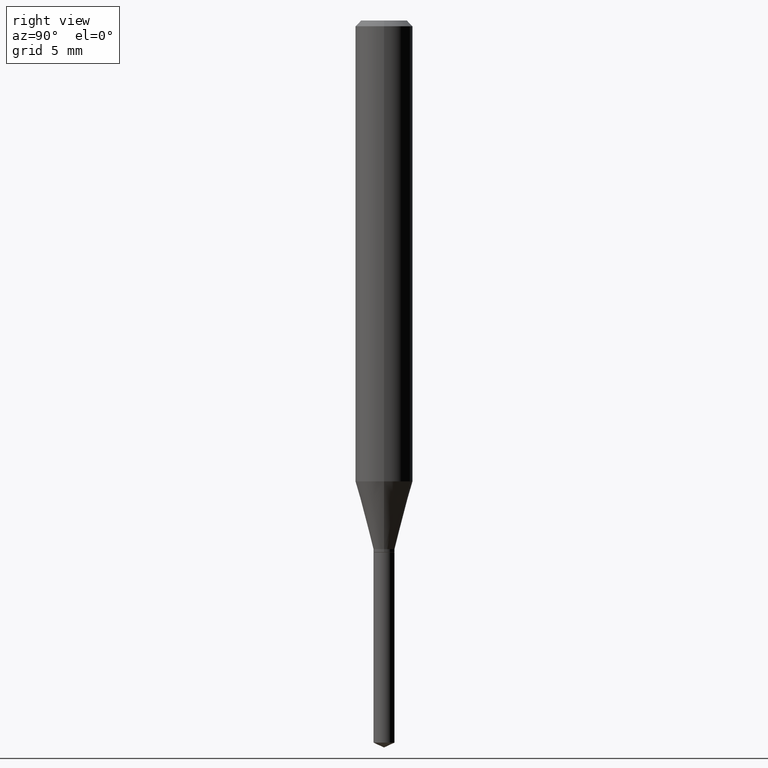
[diagram: clean part render]
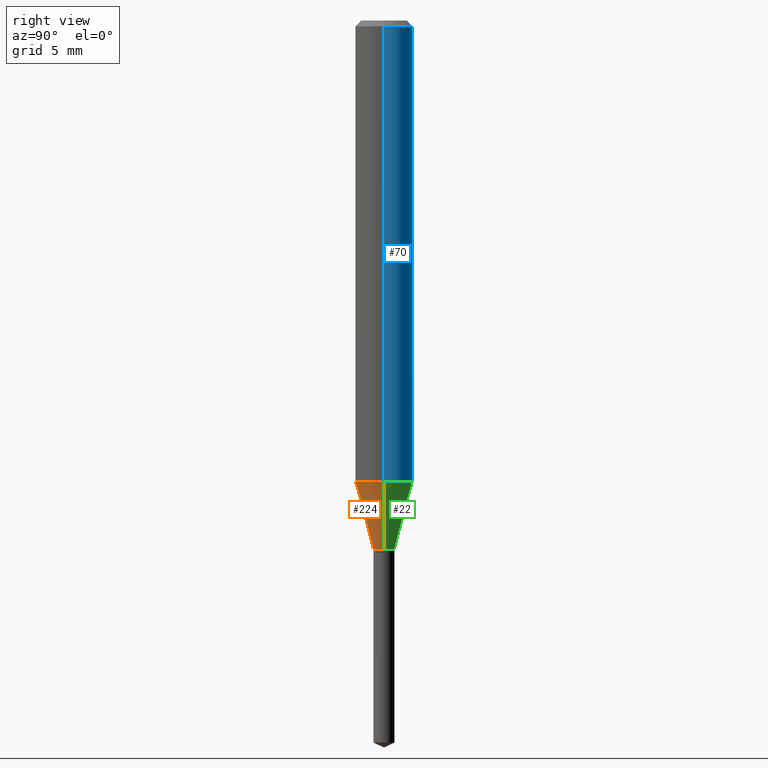
[diagram: same view with three faces highlighted in distinct colors, each labeled with its STEP entity id]
A machine part, right view with three faces highlighted in distinct colors.
Their STEP definitions:

[orange] entity #224 — the highlighted conical surface has half-angle 15 deg.
#25 = CARTESIAN_POINT ( 'NONE',  ( 2.660670061129428738E-29, -3.798731696661342438E-15, -1.088000000000000078 ) ) ;
#42 = DIRECTION ( 'NONE',  ( 1.000000000000000000, -6.982962677686277755E-15, 0.000000000000000000 ) ) ;
#58 = CARTESIAN_POINT ( 'NONE',  ( -0.02164999999999997135, -3.655373638385810145E-15, -1.088000000000000078 ) ) ;
#62 = CARTESIAN_POINT ( 'NONE',  ( 0.02164999999999997135, -3.949912838633250169E-15, -1.088000000000000078 ) ) ;
#73 = DIRECTION ( 'NONE',  ( -2.445468806185136597E-29, 3.491481338843145583E-15, 1.000000000000000000 ) ) ;
#74 = DIRECTION ( 'NONE',  ( 1.000000000000000000, -6.982962677686277755E-15, 0.000000000000000000 ) ) ;
#84 = EDGE_CURVE ( 'NONE', #104, #363, #98, .T. ) ;
#98 = LINE ( 'NONE', #122, #254 ) ;
#101 = AXIS2_PLACEMENT_3D ( 'NONE', #113, #477, #141 ) ;
#102 = EDGE_LOOP ( 'NONE', ( #115, #163, #234, #475 ) ) ;
#104 = VERTEX_POINT ( 'NONE', #62 ) ;
#113 = CARTESIAN_POINT ( 'NONE',  ( 2.319334703774938561E-29, -3.311395269602319629E-15, -0.9484212997969236891 ) ) ;
#115 = ORIENTED_EDGE ( 'NONE', *, *, #429, .F. ) ;
#122 = CARTESIAN_POINT ( 'NONE',  ( 0.02164999999999997135, -3.949912838633250169E-15, -1.088000000000000078 ) ) ;
#134 = FACE_OUTER_BOUND ( 'NONE', #102, .T. ) ;
#135 = AXIS2_PLACEMENT_3D ( 'NONE', #25, #73, #74 ) ;
#141 = DIRECTION ( 'NONE',  ( 1.000000000000000000, -6.982962677686268288E-15, 0.000000000000000000 ) ) ;
#142 = VERTEX_POINT ( 'NONE', #357 ) ;
#147 = CARTESIAN_POINT ( 'NONE',  ( 0.05905000000000010241, -3.723739215719694549E-15, -0.9484212997969236891 ) ) ;
#152 = DIRECTION ( 'NONE',  ( -0.2588190451025211281, 5.211531920934548675E-15, 0.9659258262890682012 ) ) ;
#163 = ORIENTED_EDGE ( 'NONE', *, *, #476, .T. ) ;
#189 = VERTEX_POINT ( 'NONE', #58 ) ;
#199 = DIRECTION ( 'NONE',  ( 0.2588190451025211281, 1.565188264969623940E-15, 0.9659258262890682012 ) ) ;
#211 = AXIS2_PLACEMENT_3D ( 'NONE', #301, #448, #42 ) ;
#224 = ADVANCED_FACE ( 'NONE', ( #134 ), #253, .T. ) ;
#225 = LINE ( 'NONE', #457, #413 ) ;
#234 = ORIENTED_EDGE ( 'NONE', *, *, #84, .T. ) ;
#253 = CONICAL_SURFACE ( 'NONE', #135, 0.02164999999999997135, 0.2617993877991497964 ) ;
#254 = VECTOR ( 'NONE', #199, 39.37007874015748143 ) ;
#301 = CARTESIAN_POINT ( 'NONE',  ( 2.660670061129428738E-29, -3.798731696661342438E-15, -1.088000000000000078 ) ) ;
#333 = CIRCLE ( 'NONE', #211, 0.02164999999999997135 ) ;
#357 = CARTESIAN_POINT ( 'NONE',  ( -0.05905000000000010241, -2.891819784135979347E-15, -0.9484212997969236891 ) ) ;
#363 = VERTEX_POINT ( 'NONE', #147 ) ;
#377 = EDGE_CURVE ( 'NONE', #142, #363, #452, .T. ) ;
#413 = VECTOR ( 'NONE', #152, 39.37007874015748143 ) ;
#429 = EDGE_CURVE ( 'NONE', #189, #142, #225, .T. ) ;
#448 = DIRECTION ( 'NONE',  ( -2.445468806185136597E-29, 3.491481338843145583E-15, 1.000000000000000000 ) ) ;
#452 = CIRCLE ( 'NONE', #101, 0.05905000000000010241 ) ;
#457 = CARTESIAN_POINT ( 'NONE',  ( -0.02164999999999997135, -3.644899194369281124E-15, -1.088000000000000078 ) ) ;
#475 = ORIENTED_EDGE ( 'NONE', *, *, #377, .F. ) ;
#476 = EDGE_CURVE ( 'NONE', #189, #104, #333, .T. ) ;
#477 = DIRECTION ( 'NONE',  ( -2.445468806185136597E-29, 3.491481338843145583E-15, 1.000000000000000000 ) ) ;

[blue] entity #70 — the highlighted cylindrical surface (edge-blend (fillet) strip) has radius 1.4999 mm, axis along (-0, 0, 1).
#13 = EDGE_LOOP ( 'NONE', ( #478, #353, #334, #166 ) ) ;
#70 = ADVANCED_FACE ( 'NONE', ( #91 ), #123, .T. ) ;
#80 = LINE ( 'NONE', #453, #218 ) ;
#91 = FACE_OUTER_BOUND ( 'NONE', #13, .T. ) ;
#119 = DIRECTION ( 'NONE',  ( 1.000000000000000000, -6.982962677686268288E-15, 0.000000000000000000 ) ) ;
#123 = CYLINDRICAL_SURFACE ( 'NONE', #244, 0.05905000000000005383 ) ;
#128 = DIRECTION ( 'NONE',  ( -2.445468806185136597E-29, 3.491481338843145583E-15, 1.000000000000000000 ) ) ;
#142 = VERTEX_POINT ( 'NONE', #357 ) ;
#145 = AXIS2_PLACEMENT_3D ( 'NONE', #381, #188, #119 ) ;
#147 = CARTESIAN_POINT ( 'NONE',  ( 0.05905000000000010241, -3.723739215719694549E-15, -0.9484212997969236891 ) ) ;
#150 = VERTEX_POINT ( 'NONE', #428 ) ;
#157 = CIRCLE ( 'NONE', #436, 0.05905000000000000526 ) ;
#166 = ORIENTED_EDGE ( 'NONE', *, *, #395, .F. ) ;
#187 = EDGE_CURVE ( 'NONE', #310, #150, #157, .T. ) ;
#188 = DIRECTION ( 'NONE',  ( -2.445468806185136597E-29, 3.491481338843145583E-15, 1.000000000000000000 ) ) ;
#218 = VECTOR ( 'NONE', #257, 39.37007874015748143 ) ;
#236 = CARTESIAN_POINT ( 'NONE',  ( 0.000000000000000000, 0.000000000000000000, 0.000000000000000000 ) ) ;
#244 = AXIS2_PLACEMENT_3D ( 'NONE', #236, #309, #268 ) ;
#257 = DIRECTION ( 'NONE',  ( -2.445468806185136877E-29, 3.491481338843145188E-15, 1.000000000000000000 ) ) ;
#266 = EDGE_CURVE ( 'NONE', #142, #150, #329, .T. ) ;
#268 = DIRECTION ( 'NONE',  ( 1.000000000000000000, -6.982962677686266711E-15, 4.876176775795935793E-29 ) ) ;
#274 = DIRECTION ( 'NONE',  ( 1.000000000000000000, -6.982962677686268288E-15, 0.000000000000000000 ) ) ;
#280 = CIRCLE ( 'NONE', #145, 0.05905000000000010241 ) ;
#309 = DIRECTION ( 'NONE',  ( -2.445468806185136597E-29, 3.491481338843145583E-15, 1.000000000000000000 ) ) ;
#310 = VERTEX_POINT ( 'NONE', #407 ) ;
#327 = CARTESIAN_POINT ( 'NONE',  ( -0.05905000000000005383, 4.195754854663395423E-16, -2.904631170795524694E-30 ) ) ;
#329 = LINE ( 'NONE', #327, #355 ) ;
#334 = ORIENTED_EDGE ( 'NONE', *, *, #187, .F. ) ;
#353 = ORIENTED_EDGE ( 'NONE', *, *, #266, .T. ) ;
#355 = VECTOR ( 'NONE', #444, 39.37007874015748143 ) ;
#357 = CARTESIAN_POINT ( 'NONE',  ( -0.05905000000000010241, -2.891819784135979347E-15, -0.9484212997969236891 ) ) ;
#363 = VERTEX_POINT ( 'NONE', #147 ) ;
#381 = CARTESIAN_POINT ( 'NONE',  ( 2.319334703774938561E-29, -3.311395269602319629E-15, -0.9484212997969236891 ) ) ;
#395 = EDGE_CURVE ( 'NONE', #363, #310, #80, .T. ) ;
#407 = CARTESIAN_POINT ( 'NONE',  ( 0.05905000000000000526, -4.535783407291119586E-16, -0.01181000000000007565 ) ) ;
#428 = CARTESIAN_POINT ( 'NONE',  ( -0.05905000000000000526, -1.256739346640688792E-15, -0.01181000000000007565 ) ) ;
#436 = AXIS2_PLACEMENT_3D ( 'NONE', #472, #128, #274 ) ;
#444 = DIRECTION ( 'NONE',  ( -2.445468806185136877E-29, 3.491481338843145188E-15, 1.000000000000000000 ) ) ;
#453 = CARTESIAN_POINT ( 'NONE',  ( 0.05905000000000005383, -4.123439461173744271E-16, 2.879382386107502672E-30 ) ) ;
#472 = CARTESIAN_POINT ( 'NONE',  ( 2.888098660104664642E-31, -4.123439461173780879E-17, -0.01181000000000007565 ) ) ;
#478 = ORIENTED_EDGE ( 'NONE', *, *, #487, .T. ) ;
#487 = EDGE_CURVE ( 'NONE', #363, #142, #280, .T. ) ;

[green] entity #22 — the highlighted conical surface has half-angle 15 deg.
#5 = FACE_OUTER_BOUND ( 'NONE', #470, .T. ) ;
#22 = ADVANCED_FACE ( 'NONE', ( #5 ), #109, .T. ) ;
#56 = ORIENTED_EDGE ( 'NONE', *, *, #84, .F. ) ;
#58 = CARTESIAN_POINT ( 'NONE',  ( -0.02164999999999997135, -3.655373638385810145E-15, -1.088000000000000078 ) ) ;
#62 = CARTESIAN_POINT ( 'NONE',  ( 0.02164999999999997135, -3.949912838633250169E-15, -1.088000000000000078 ) ) ;
#78 = DIRECTION ( 'NONE',  ( -2.445468806185136597E-29, 3.491481338843145583E-15, 1.000000000000000000 ) ) ;
#84 = EDGE_CURVE ( 'NONE', #104, #363, #98, .T. ) ;
#98 = LINE ( 'NONE', #122, #254 ) ;
#100 = EDGE_CURVE ( 'NONE', #104, #189, #279, .T. ) ;
#104 = VERTEX_POINT ( 'NONE', #62 ) ;
#109 = CONICAL_SURFACE ( 'NONE', #364, 0.02164999999999997135, 0.2617993877991497964 ) ;
#119 = DIRECTION ( 'NONE',  ( 1.000000000000000000, -6.982962677686268288E-15, 0.000000000000000000 ) ) ;
#122 = CARTESIAN_POINT ( 'NONE',  ( 0.02164999999999997135, -3.949912838633250169E-15, -1.088000000000000078 ) ) ;
#140 = ORIENTED_EDGE ( 'NONE', *, *, #487, .F. ) ;
#142 = VERTEX_POINT ( 'NONE', #357 ) ;
#145 = AXIS2_PLACEMENT_3D ( 'NONE', #381, #188, #119 ) ;
#147 = CARTESIAN_POINT ( 'NONE',  ( 0.05905000000000010241, -3.723739215719694549E-15, -0.9484212997969236891 ) ) ;
#152 = DIRECTION ( 'NONE',  ( -0.2588190451025211281, 5.211531920934548675E-15, 0.9659258262890682012 ) ) ;
#156 = DIRECTION ( 'NONE',  ( 1.000000000000000000, -6.982962677686277755E-15, 0.000000000000000000 ) ) ;
#188 = DIRECTION ( 'NONE',  ( -2.445468806185136597E-29, 3.491481338843145583E-15, 1.000000000000000000 ) ) ;
#189 = VERTEX_POINT ( 'NONE', #58 ) ;
#199 = DIRECTION ( 'NONE',  ( 0.2588190451025211281, 1.565188264969623940E-15, 0.9659258262890682012 ) ) ;
#225 = LINE ( 'NONE', #457, #413 ) ;
#254 = VECTOR ( 'NONE', #199, 39.37007874015748143 ) ;
#272 = DIRECTION ( 'NONE',  ( -2.445468806185136597E-29, 3.491481338843145583E-15, 1.000000000000000000 ) ) ;
#279 = CIRCLE ( 'NONE', #419, 0.02164999999999997135 ) ;
#280 = CIRCLE ( 'NONE', #145, 0.05905000000000010241 ) ;
#302 = CARTESIAN_POINT ( 'NONE',  ( 2.660670061129428738E-29, -3.798731696661342438E-15, -1.088000000000000078 ) ) ;
#354 = DIRECTION ( 'NONE',  ( 1.000000000000000000, -6.982962677686277755E-15, 0.000000000000000000 ) ) ;
#357 = CARTESIAN_POINT ( 'NONE',  ( -0.05905000000000010241, -2.891819784135979347E-15, -0.9484212997969236891 ) ) ;
#363 = VERTEX_POINT ( 'NONE', #147 ) ;
#364 = AXIS2_PLACEMENT_3D ( 'NONE', #302, #78, #156 ) ;
#381 = CARTESIAN_POINT ( 'NONE',  ( 2.319334703774938561E-29, -3.311395269602319629E-15, -0.9484212997969236891 ) ) ;
#397 = CARTESIAN_POINT ( 'NONE',  ( 2.660670061129428738E-29, -3.798731696661342438E-15, -1.088000000000000078 ) ) ;
#413 = VECTOR ( 'NONE', #152, 39.37007874015748143 ) ;
#419 = AXIS2_PLACEMENT_3D ( 'NONE', #397, #272, #354 ) ;
#429 = EDGE_CURVE ( 'NONE', #189, #142, #225, .T. ) ;
#441 = ORIENTED_EDGE ( 'NONE', *, *, #429, .T. ) ;
#457 = CARTESIAN_POINT ( 'NONE',  ( -0.02164999999999997135, -3.644899194369281124E-15, -1.088000000000000078 ) ) ;
#470 = EDGE_LOOP ( 'NONE', ( #490, #441, #140, #56 ) ) ;
#487 = EDGE_CURVE ( 'NONE', #363, #142, #280, .T. ) ;
#490 = ORIENTED_EDGE ( 'NONE', *, *, #100, .T. ) ;